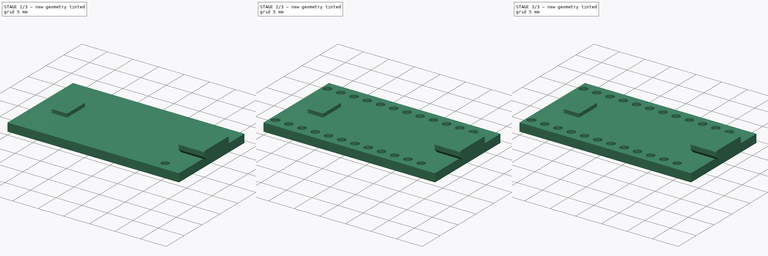
[diagram: build sequence overview — one tinted view per stage of 3, left to right]
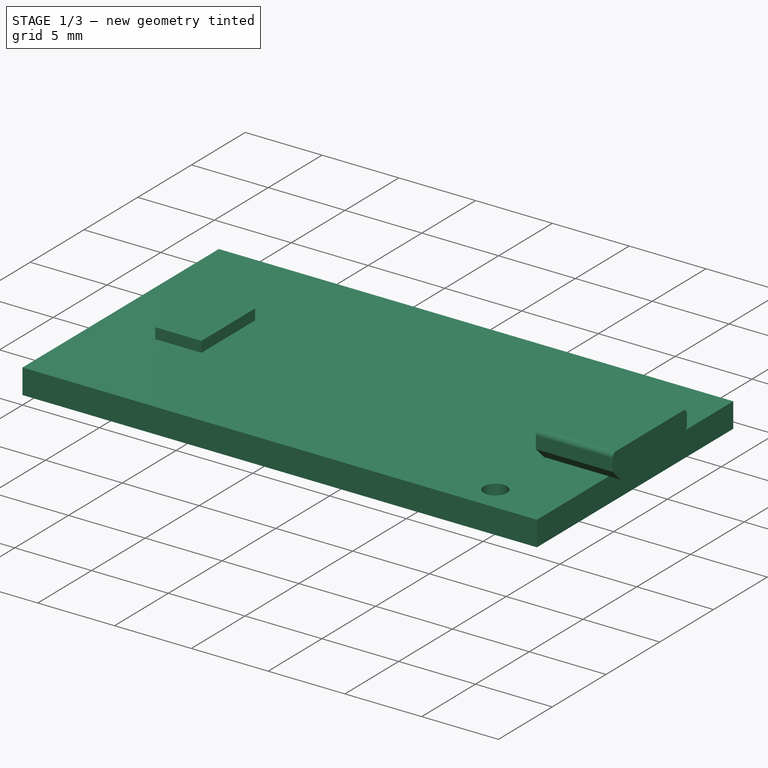
[diagram: stage 1 of 3 — iso view after this stage's code; geometry added in this stage tinted green]
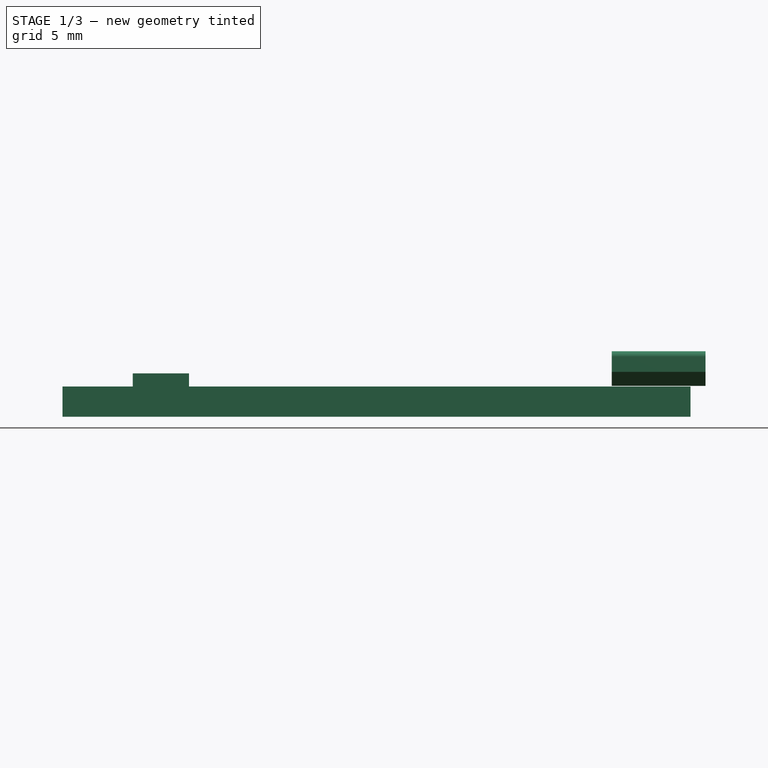
[diagram: stage 1 of 3 — front view after this stage's code; geometry added in this stage tinted green]
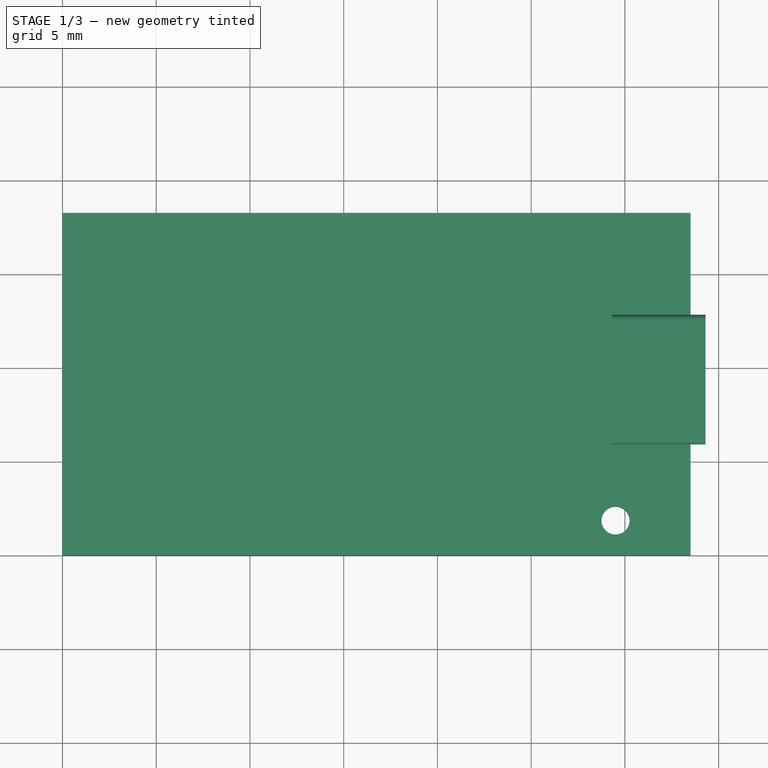
[diagram: stage 1 of 3 — top view after this stage's code; geometry added in this stage tinted green]
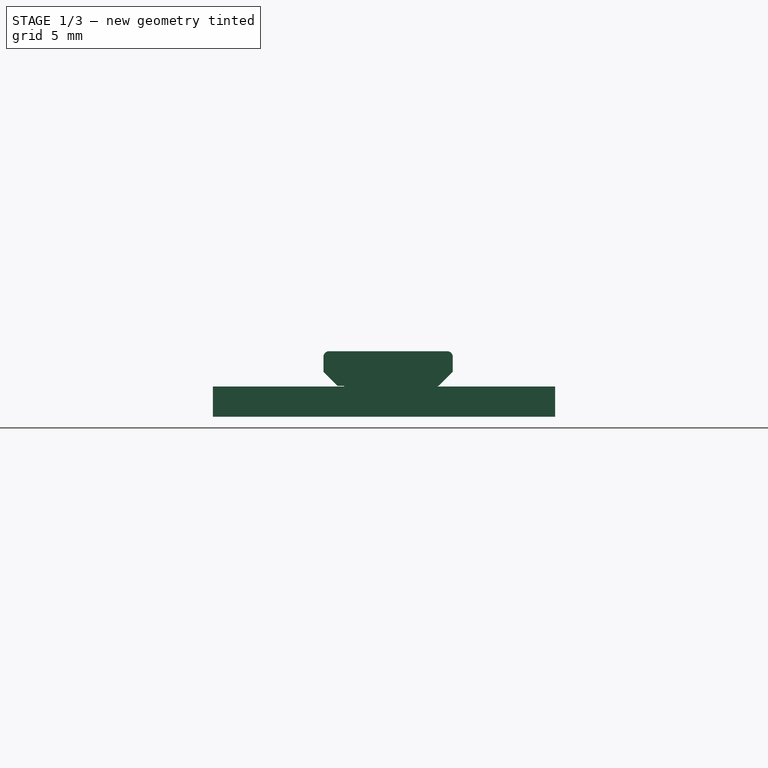
[diagram: stage 1 of 3 — right view after this stage's code; geometry added in this stage tinted green]
FCSTD DOCUMENT  (FreeCAD 0.16R6603 (Git))
Label: Arduino_Pro_Mirco
License: All rights reserved
LicenseURL: http://en.wikipedia.org/wiki/All_rights_reserved
objects: Sketcher::SketchObject×4, Part::Feature×4, PartDesign::Pad×3, PartDesign::LinearPattern×2, PartDesign::Fillet×2, PartDesign::Pocket×1, PartDesign::MultiTransform×1, Part::MultiFuse×1
note: 22 computed .brp shape members not serialized (recipe doc carries the construction recipe); baked Part::Feature solids carry a one-line shape summary decoded from their .brp

FEATURE [Sketcher::SketchObject] Sketch
  sketch-geometry (4):
    g0: LineSegment StartX=0 StartY=0 StartZ=0 EndX=33.5 EndY=0 EndZ=0
    g1: LineSegment StartX=33.5 StartY=0 StartZ=0 EndX=33.5 EndY=18.26 EndZ=0
    g2: LineSegment StartX=33.5 StartY=18.26 StartZ=0 EndX=0 EndY=18.26 EndZ=0
    g3: LineSegment StartX=0 StartY=18.26 StartZ=0 EndX=0 EndY=0 EndZ=0
  constraints (11):
    c: Coincident(g0,g1)
    c: Coincident(g1,g2)
    c: Coincident(g2,g3)
    c: Coincident(g3,g0)
    c: Horizontal(g0)
    c: Horizontal(g2)
    c: Vertical(g1)
    c: Vertical(g3)
    c: Coincident(g0,g-1)
    c: DistanceY(g1) = 18.26  'Board Height'
    c: DistanceX(g2) = -33.5  'Board Length'
FEATURE [PartDesign::Pad] Pad
  Length = 1.62
  Length2 = 100
  Sketch = -> Sketch
  Type = 0
FEATURE [Sketcher::SketchObject] Sketch001
  ExternalGeometry = -> [Pad]
  Placement = pos=(0,0,1.62) rot=(0,0,1;0rad)
  Support = -> Pad [Face6]
  sketch-geometry (1):
    g0: Circle CenterX=29.5 CenterY=1.85654 CenterZ=0 NormalX=0 NormalY=0 NormalZ=1 Radius=0.75
  constraints (2):
    c: Radius(g0) = 0.75
    c: DistanceX(g0,g-3) = 4
FEATURE [PartDesign::Pocket] Pocket
  Length = 5
  Sketch = -> Sketch001
  Type = 1
FEATURE [Part::Feature] Fillet001001  label="Fillet002"
  Placement = pos=(29.3,0,0) rot=(0.57735,0.57735,0.57735;2.0944rad)
  shape: bbox 5 x 6.9 x 1.85 mm, 10 faces (baked)
FEATURE [Part::Feature] Pad002001  label="Pad003"
  shape: bbox 33.5 x 18.26 x 2.32 mm, 35 faces (baked)
FEATURE [Part::Feature] Fillet001001001  label="Fillet003"
  Placement = pos=(29.3,0,0) rot=(0.57735,0.57735,0.57735;2.0944rad)
  shape: bbox 5 x 6.9 x 1.85 mm, 10 faces (baked)
FEATURE [Part::MultiFuse] Fusion
  Shapes = -> [Pad002001,Fillet001001001]
FEATURE [Part::Feature] Fusion001
  Placement = pos=(0,0,-3) rot=(0,0,1;0rad)
  shape: bbox 34.3 x 18.26 x 3.5 mm, 45 faces, 2 solids (baked)
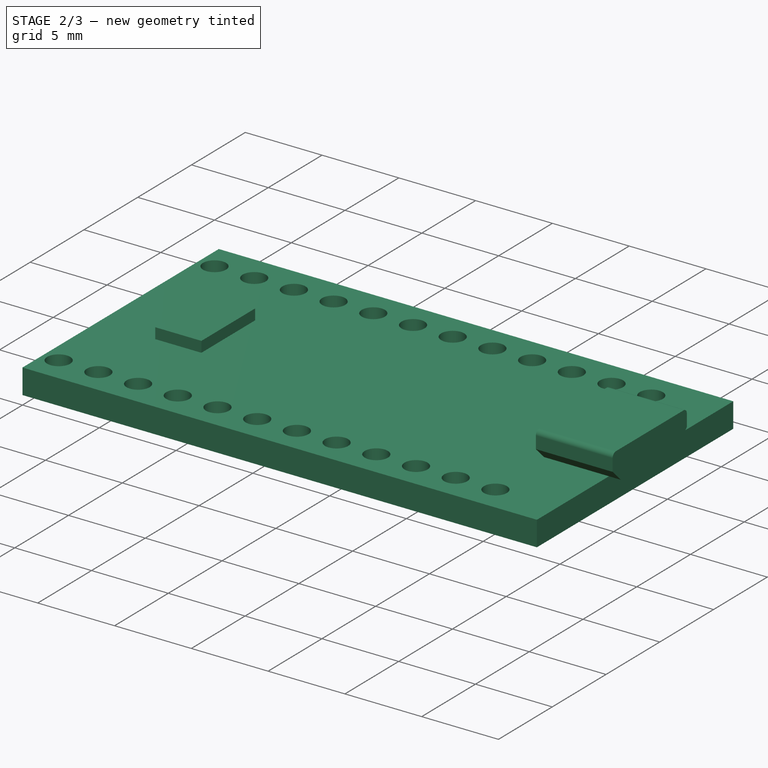
[diagram: stage 2 of 3 — iso view after this stage's code; geometry added in this stage tinted green]
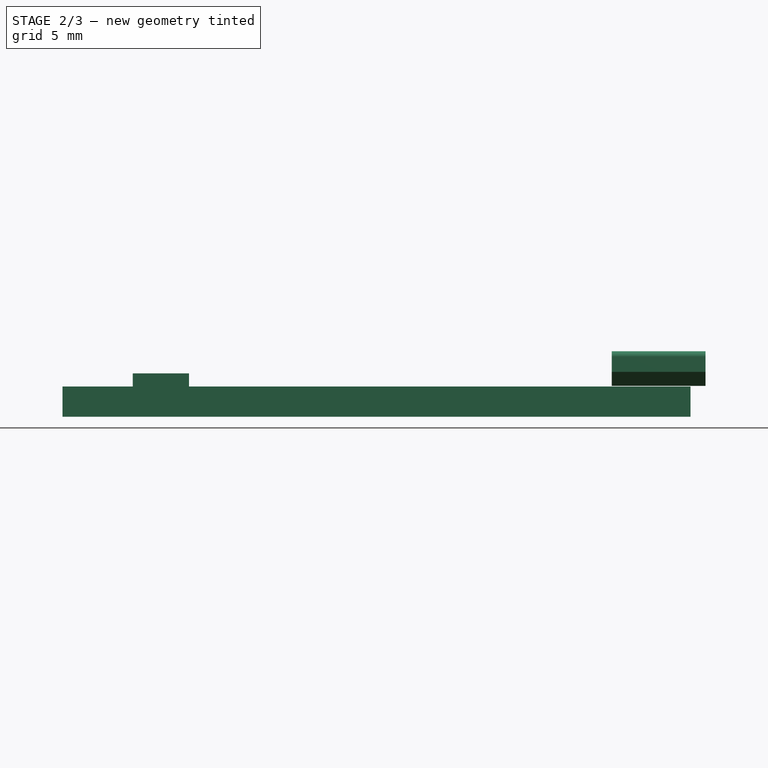
[diagram: stage 2 of 3 — front view after this stage's code; geometry added in this stage tinted green]
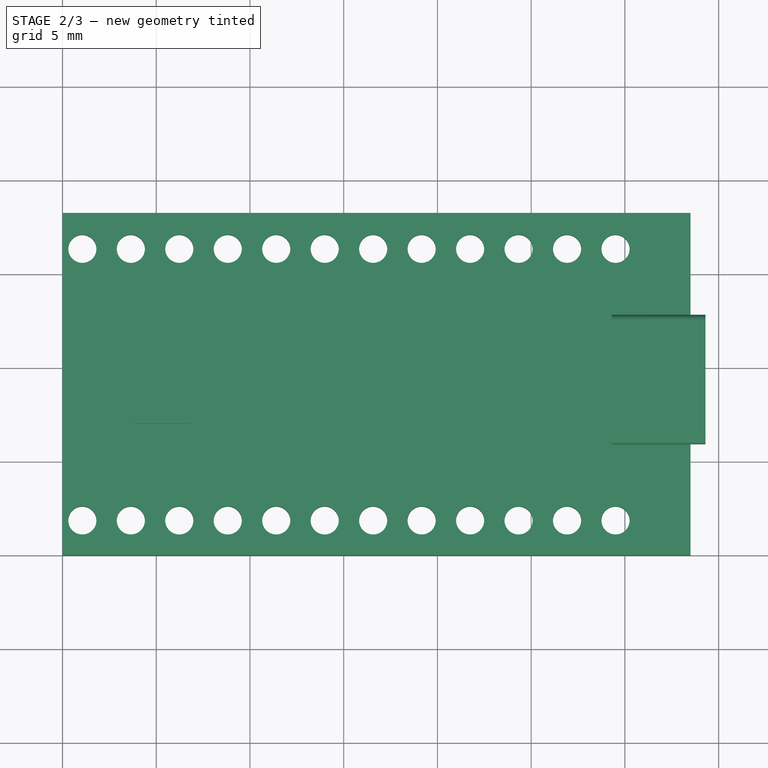
[diagram: stage 2 of 3 — top view after this stage's code; geometry added in this stage tinted green]
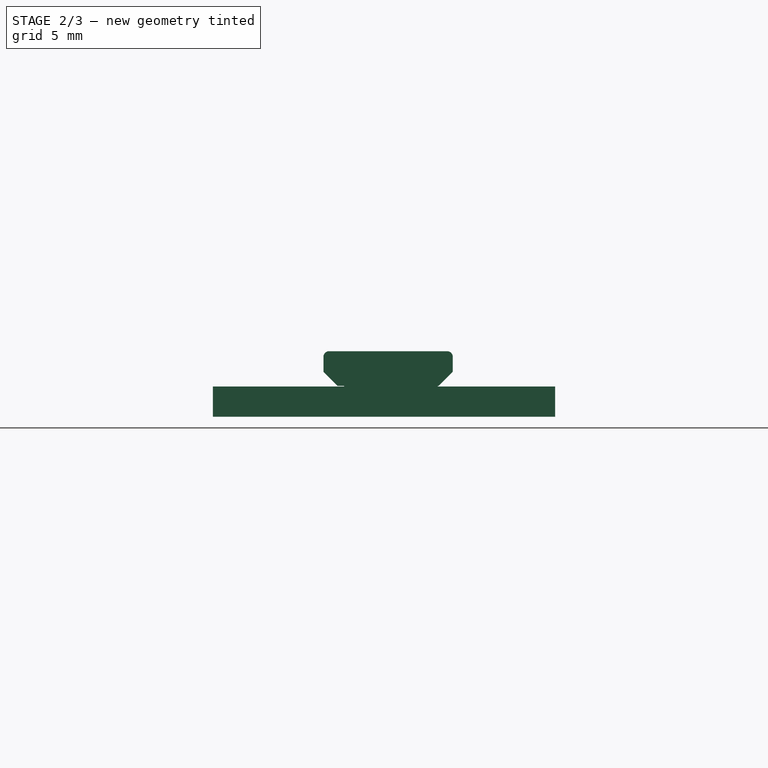
[diagram: stage 2 of 3 — right view after this stage's code; geometry added in this stage tinted green]
FEATURE [PartDesign::LinearPattern] LinearPattern
  Direction = -> Sketch001 [H_Axis]
  Length = 28.44
  Occurrences = 12
  Reversed = true
FEATURE [PartDesign::LinearPattern] LinearPattern001
  Direction = -> Sketch001 [V_Axis]
  Length = 14.49
  Occurrences = 2
  expr: Length = 15.24 - 0.75
FEATURE [PartDesign::MultiTransform] MultiTransform
  Originals = -> [Pocket]
  Transformations = -> [LinearPattern,LinearPattern001]
FEATURE [Sketcher::SketchObject] Sketch003
  Placement = pos=(0,0,1.62) rot=(0,0,1;0rad)
  Support = -> MultiTransform [Face5]
  sketch-geometry (4):
    g0: LineSegment StartX=3.75 StartY=12 StartZ=0 EndX=6.75 EndY=12 EndZ=0
    g1: LineSegment StartX=6.75 StartY=12 StartZ=0 EndX=6.75 EndY=7 EndZ=0
    g2: LineSegment StartX=6.75 StartY=7 StartZ=0 EndX=3.75 EndY=7 EndZ=0
    g3: LineSegment StartX=3.75 StartY=7 StartZ=0 EndX=3.75 EndY=12 EndZ=0
  constraints (12):
    c: Coincident(g0,g1)
    c: Coincident(g1,g2)
    c: Coincident(g2,g3)
    c: Coincident(g3,g0)
    c: Horizontal(g0)
    c: Horizontal(g2)
    c: Vertical(g1)
    c: Vertical(g3)
    c: DistanceY(g3) = 5
    c: DistanceX(g0) = 3
    c: DistanceY(g-1,g2) = 7
    c: DistanceX(g2) = 3.75
FEATURE [PartDesign::Pad] Pad002
  Length = 0.7
  Length2 = 100
  Sketch = -> Sketch003
  Type = 0
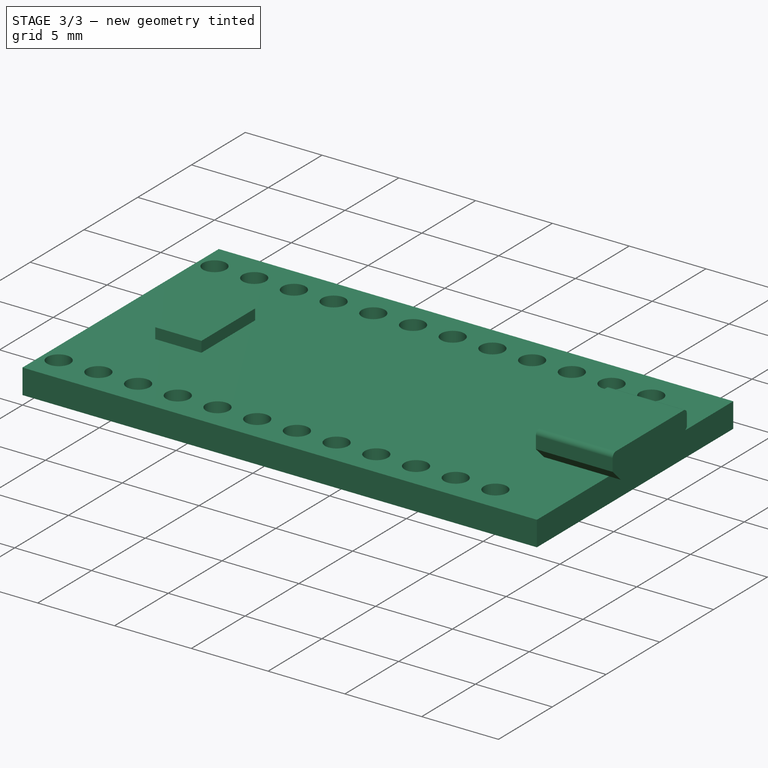
[diagram: stage 3 of 3 — iso view after this stage's code; geometry added in this stage tinted green]
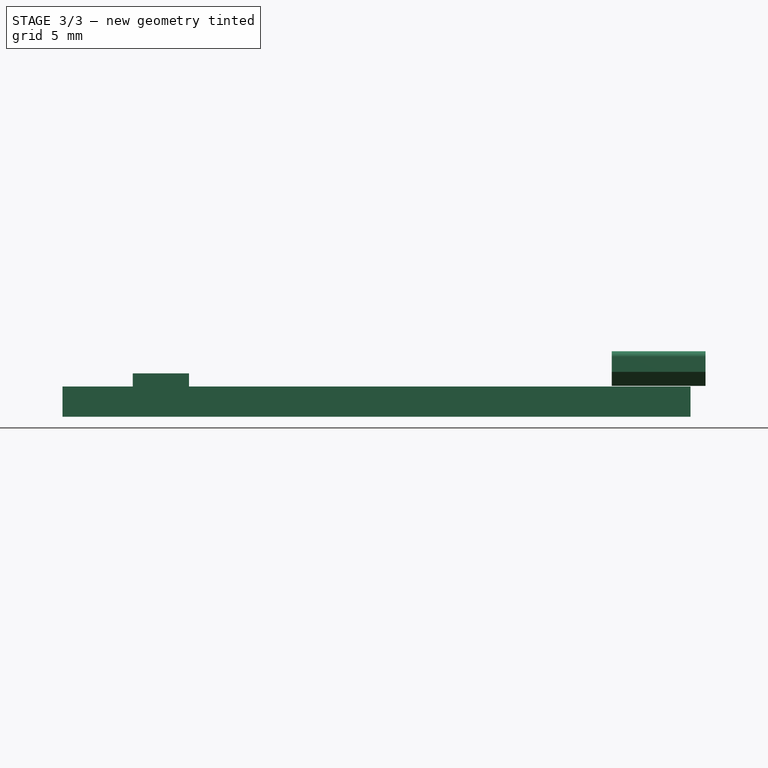
[diagram: stage 3 of 3 — front view after this stage's code; geometry added in this stage tinted green]
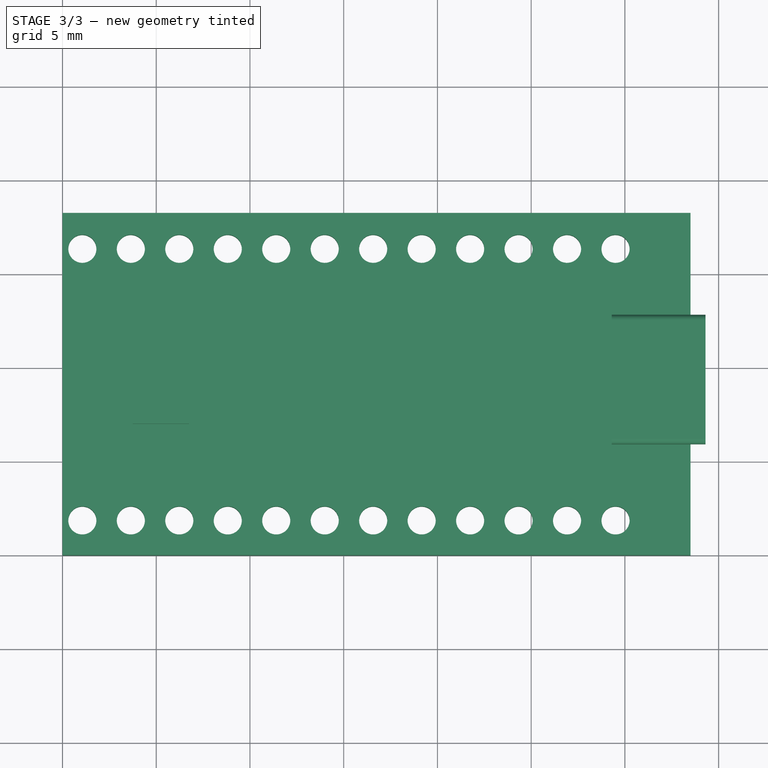
[diagram: stage 3 of 3 — top view after this stage's code; geometry added in this stage tinted green]
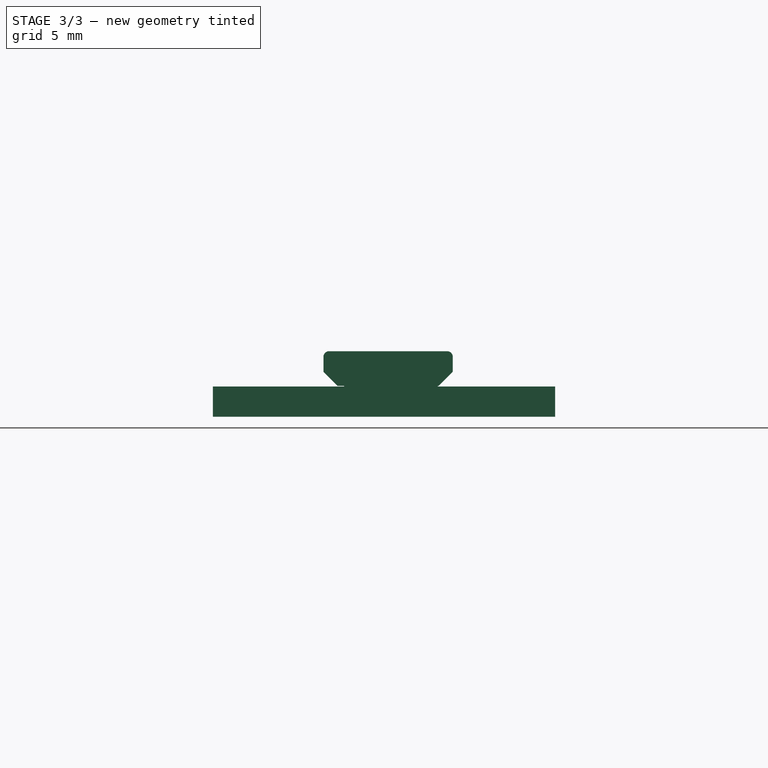
[diagram: stage 3 of 3 — right view after this stage's code; geometry added in this stage tinted green]
FEATURE [Sketcher::SketchObject] Sketch002
  Placement = pos=(29.3,0,0) rot=(0.57735,0.57735,0.57735;2.0944rad)
  expr: Constraints[19] = 18.7 / 2
  sketch-geometry (8):
    g0: LineSegment StartX=5.9 StartY=3.5 StartZ=0 EndX=12.8 EndY=3.5 EndZ=0
    g1: LineSegment StartX=12.8 StartY=3.5 StartZ=0 EndX=12.8 EndY=2.4 EndZ=0
    g2: LineSegment StartX=12.8 StartY=2.4 StartZ=0 EndX=12.05 EndY=1.65 EndZ=0
    g3: LineSegment StartX=12.05 StartY=1.65 StartZ=0 EndX=6.65 EndY=1.65 EndZ=0
    g4: LineSegment StartX=6.65 StartY=1.65 StartZ=0 EndX=5.9 EndY=2.4 EndZ=0
    g5: LineSegment StartX=5.9 StartY=2.4 StartZ=0 EndX=5.9 EndY=3.5 EndZ=0
    g6: GeomPoint [constr] X=9.35 Y=3.5 Z=0
    g7: GeomPoint [constr] X=9.35 Y=1.65 Z=0
  constraints (20):
    c: Horizontal(g0)
    c: Coincident(g0,g1)
    c: Vertical(g1)
    c: Coincident(g1,g2)
    c: Coincident(g2,g3)
    c: Horizontal(g3)
    c: Coincident(g3,g4)
    c: Coincident(g4,g5)
    c: Coincident(g5,g0)
    c: Vertical(g5)
    c: DistanceX(g0) = 6.9
    c: DistanceX(g3) = -5.4
    c: DistanceY(g0,g3) = -1.85
    c: DistanceY(g5) = 1.1
    c: Equal(g5,g1)
    c: Symmetric(g0,g0,g6)
    c: Symmetric(g3,g2,g7)
    c: DistanceX(g7,g6) = 0
    c: DistanceY(g-1,g3) = 1.65
    c: DistanceX(g-1,g6) = 9.35
FEATURE [PartDesign::Pad] Pad001
  Length = 5
  Length2 = 100
  Placement = pos=(29.3,0,0) rot=(0.57735,0.57735,0.57735;2.0944rad)
  Sketch = -> Sketch002
  Type = 0
FEATURE [PartDesign::Fillet] Fillet
  Base = -> Pad001 [Edge1]
  Placement = pos=(29.3,0,0) rot=(0.57735,0.57735,0.57735;2.0944rad)
  Radius = 0.3
FEATURE [PartDesign::Fillet] Fillet001
  Base = -> Fillet [Edge3]
  Placement = pos=(29.3,0,0) rot=(0.57735,0.57735,0.57735;2.0944rad)
  Radius = 0.3
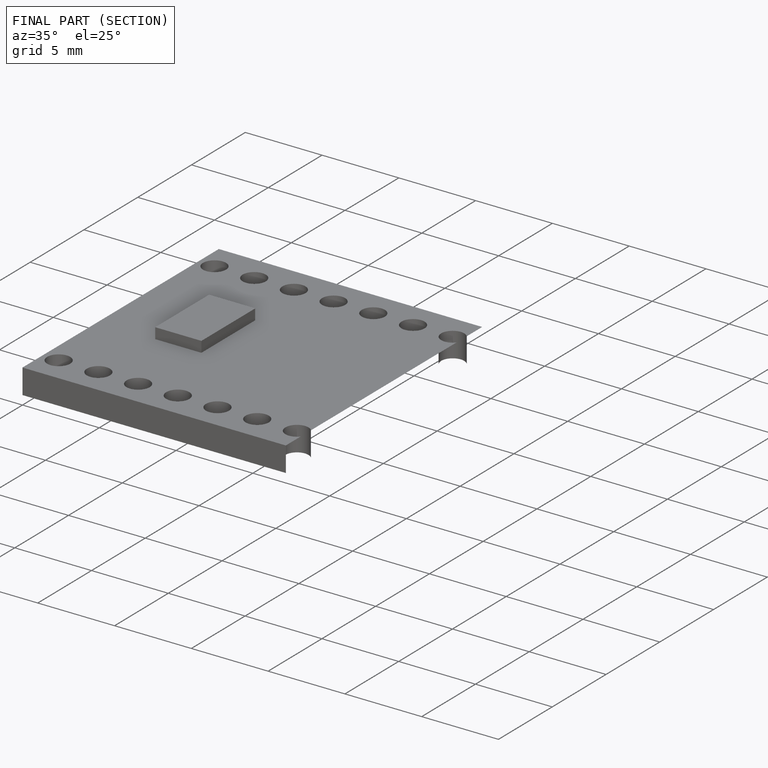
[diagram: finished part — half-section view (interior)]
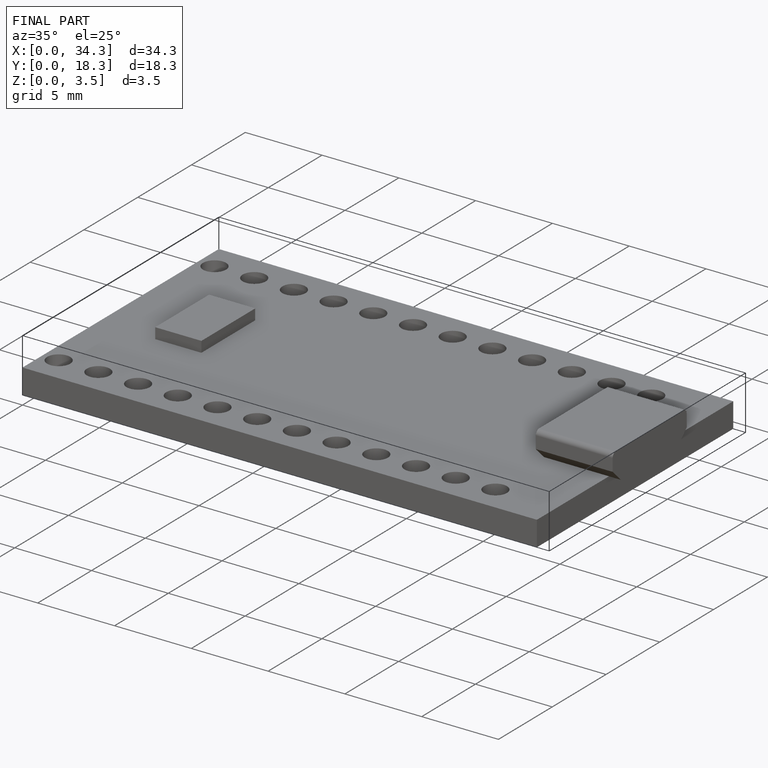
[diagram: finished part — iso view with bounding-box wireframe]
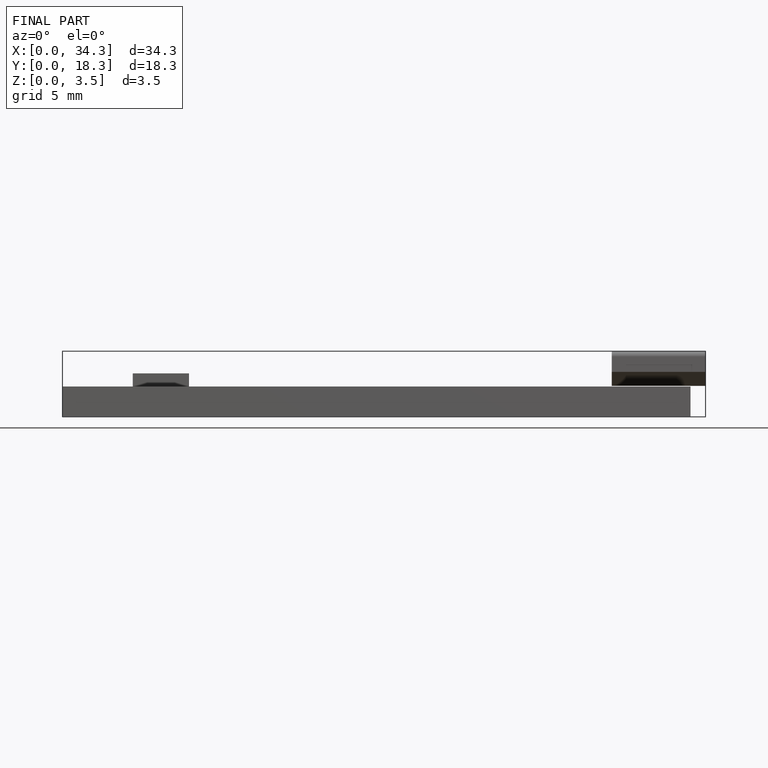
[diagram: finished part — front view with bounding-box wireframe]
